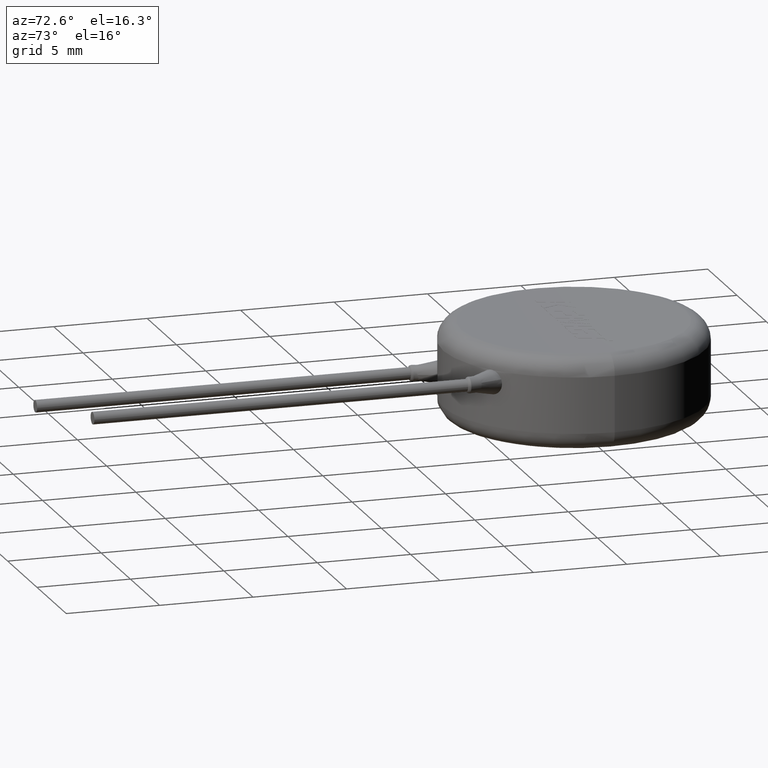
[diagram: clean part render]
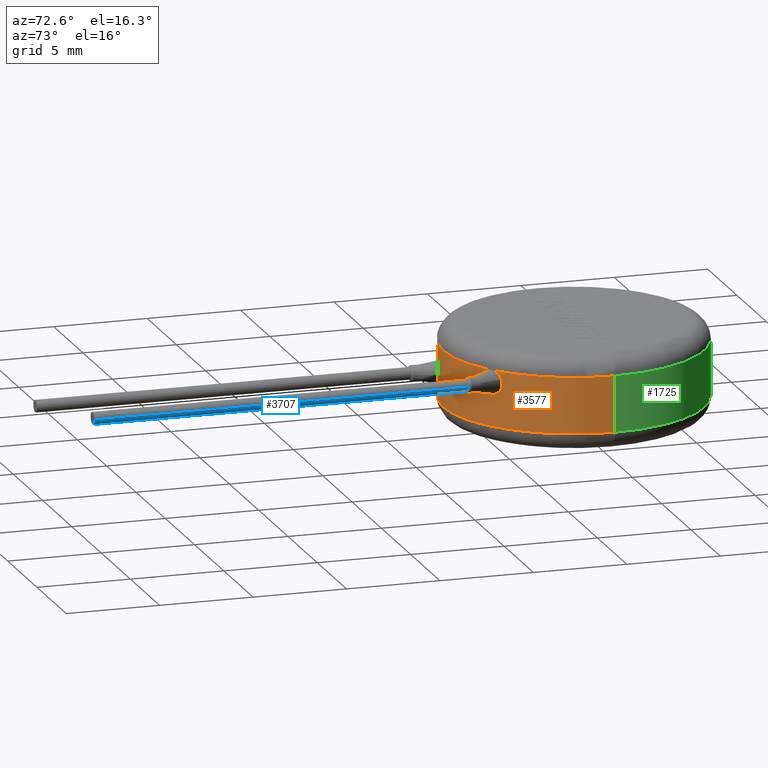
[diagram: same view with three faces highlighted in distinct colors, each labeled with its STEP entity id]
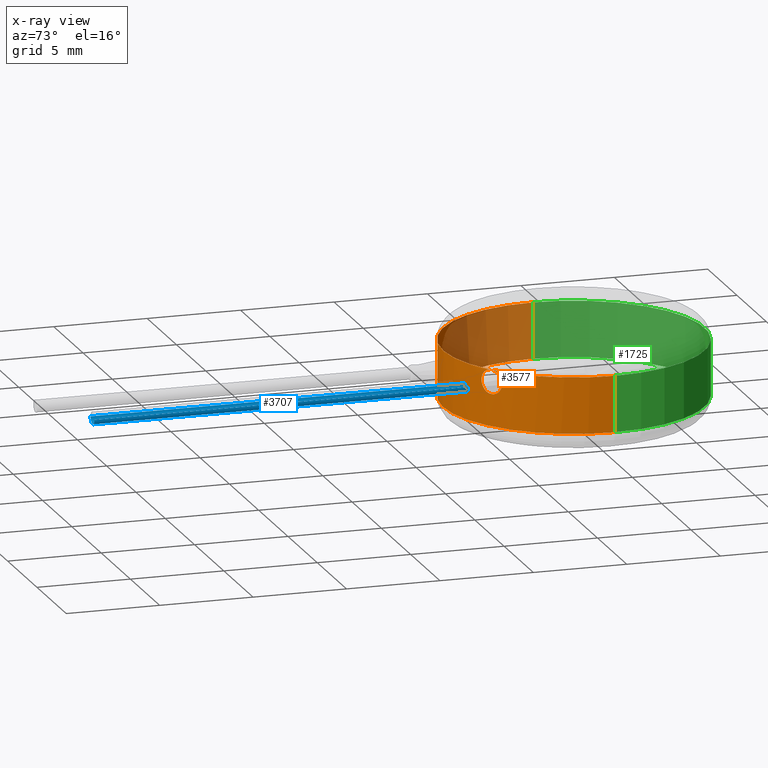
[diagram: x-ray of the same camera — body ghosted, the three highlighted faces saturated]
A machine part, auxiliary view with three faces highlighted in distinct colors.
The next image is the same camera in x-ray (body ghosted, the three faces saturated) — at least one of them is partly hidden behind the body in this view.
Their STEP definitions:

[orange] entity #3577 — the highlighted cylindrical surface (partial cylindrical patch) has radius 7 mm, axis along (-0, -0, -1).
#12 = ORIENTED_EDGE ( 'NONE', *, *, #2064, .T. ) ;
#20 = VECTOR ( 'NONE', #1004, 1000.000000000000000 ) ;
#27 = ORIENTED_EDGE ( 'NONE', *, *, #2207, .T. ) ;
#29 = CARTESIAN_POINT ( 'NONE',  ( -7.000000000000000000, 0.0000000000000000000, 5.000000000000000000 ) ) ;
#43 = CARTESIAN_POINT ( 'NONE',  ( -3.977610638396999600, -5.760087986247347300, 1.000000000000000000 ) ) ;
#48 = B_SPLINE_CURVE_WITH_KNOTS ( 'NONE', 3,
 ( #987, #651, #1262, #2299, #3583, #43 ),
 .UNSPECIFIED., .F., .F.,
 ( 4, 2, 4 ),
 ( 0.002963719865787387600, 0.003404983552863282400, 0.003846247239939177200 ),
 .UNSPECIFIED. ) ;
#77 = EDGE_CURVE ( 'NONE', #722, #3879, #3872, .T. ) ;
#148 = CARTESIAN_POINT ( 'NONE',  ( 3.828367286404154200, -5.860833534000196500, 3.945505201940359800 ) ) ;
#153 = CARTESIAN_POINT ( 'NONE',  ( -4.395926143040046700, -5.448448431590438900, 1.106615888908080400 ) ) ;
#175 = CARTESIAN_POINT ( 'NONE',  ( 3.535580555238675000, -6.041575525594659300, 3.233672010965067400 ) ) ;
#182 = DIRECTION ( 'NONE',  ( 0.0000000000000000000, 0.0000000000000000000, 1.000000000000000000 ) ) ;
#183 = CARTESIAN_POINT ( 'NONE',  ( -3.530729797589586400, -6.044331815545288800, 1.626217363230152200 ) ) ;
#217 = CARTESIAN_POINT ( 'NONE',  ( 4.557008083773412800, -5.313537176347199200, 3.595303316172778500 ) ) ;
#276 = CYLINDRICAL_SURFACE ( 'NONE', #1377, 7.000000000000000000 ) ;
#312 = B_SPLINE_CURVE_WITH_KNOTS ( 'NONE', 3,
 ( #2465, #1100, #148, #3098, #3082, #3775, #1813, #3057, #175, #1796 ),
 .UNSPECIFIED., .F., .F.,
 ( 4, 2, 2, 2, 4 ),
 ( 1.085620294392345800E-006, 0.0002797900207472633700, 0.0005584944212001350800, 0.0008371988216530067400, 0.001115903222105878500 ),
 .UNSPECIFIED. ) ;
#390 = VECTOR ( 'NONE', #3253, 1000.000000000000000 ) ;
#410 = DIRECTION ( 'NONE',  ( -0.0000000000000000000, -0.0000000000000000000, -1.000000000000000000 ) ) ;
#421 = ORIENTED_EDGE ( 'NONE', *, *, #1271, .T. ) ;
#448 = DIRECTION ( 'NONE',  ( 1.000000000000000000, 0.0000000000000000000, 0.0000000000000000000 ) ) ;
#465 = CARTESIAN_POINT ( 'NONE',  ( -3.936970613067717100, -5.790521757928056300, 2.290329430739383100 ) ) ;
#486 = CARTESIAN_POINT ( 'NONE',  ( 4.557008083773412800, -5.313537176347199200, 3.595303316172778500 ) ) ;
#535 = CARTESIAN_POINT ( 'NONE',  ( 4.497122014507260300, -5.364785372250214100, 2.932054119290087500 ) ) ;
#538 = CIRCLE ( 'NONE', #3452, 7.000000000000000000 ) ;
#549 = EDGE_CURVE ( 'NONE', #2054, #1360, #2584, .T. ) ;
#577 = DIRECTION ( 'NONE',  ( -1.000000000000000000, 0.0000000000000000000, 0.0000000000000000000 ) ) ;
#651 = CARTESIAN_POINT ( 'NONE',  ( -3.533272416161075100, -6.042846572936472400, 1.479120242707307100 ) ) ;
#653 = CARTESIAN_POINT ( 'NONE',  ( -4.354083674969453800, -5.482417994490859300, 2.223775622895006500 ) ) ;
#722 = VERTEX_POINT ( 'NONE', #3522 ) ;
#728 = CARTESIAN_POINT ( 'NONE',  ( -3.530729797589586400, -6.044331815545288800, 1.626217363230152200 ) ) ;
#762 = CARTESIAN_POINT ( 'NONE',  ( 0.0000000000000000000, 0.0000000000000000000, 5.000000000000000000 ) ) ;
#770 = EDGE_LOOP ( 'NONE', ( #1550, #12, #3611, #3713, #2060, #871, #3565, #2434, #27, #1504, #421, #2978 ) ) ;
#835 = CARTESIAN_POINT ( 'NONE',  ( 0.0000000000000000000, 0.0000000000000000000, 4.000000000000000000 ) ) ;
#871 = ORIENTED_EDGE ( 'NONE', *, *, #3467, .T. ) ;
#958 = CARTESIAN_POINT ( 'NONE',  ( -4.593118567060977300, -5.282353815196376700, 1.635629276652488900 ) ) ;
#980 = FACE_OUTER_BOUND ( 'NONE', #770, .T. ) ;
#987 = CARTESIAN_POINT ( 'NONE',  ( -3.530729797589586400, -6.044331815545288800, 1.626217363230152200 ) ) ;
#1004 = DIRECTION ( 'NONE',  ( -0.0000000000000000000, -0.0000000000000000000, -1.000000000000000000 ) ) ;
#1052 = DIRECTION ( 'NONE',  ( 1.000000000000000000, 0.0000000000000000000, 0.0000000000000000000 ) ) ;
#1100 = CARTESIAN_POINT ( 'NONE',  ( 3.901385637171960400, -5.812724921049119900, 3.982808568606164700 ) ) ;
#1145 = CARTESIAN_POINT ( 'NONE',  ( -3.587348342874108200, -6.012126428775881800, 1.971359770299618600 ) ) ;
#1148 = CARTESIAN_POINT ( 'NONE',  ( 4.132706812022294500, -5.652199234662739400, 2.688516500495922800 ) ) ;
#1175 = EDGE_CURVE ( 'NONE', #3126, #2054, #4124, .T. ) ;
#1262 = CARTESIAN_POINT ( 'NONE',  ( -3.581488304916131200, -6.015142150009068300, 1.331680136269377300 ) ) ;
#1271 = EDGE_CURVE ( 'NONE', #2486, #3860, #48, .T. ) ;
#1312 = CARTESIAN_POINT ( 'NONE',  ( -4.217979829344741900, -5.589143583451577700, 2.293284894811562900 ) ) ;
#1360 = VERTEX_POINT ( 'NONE', #2385 ) ;
#1377 = AXIS2_PLACEMENT_3D ( 'NONE', #762, #1384, #577 ) ;
#1384 = DIRECTION ( 'NONE',  ( -0.0000000000000000000, -0.0000000000000000000, -1.000000000000000000 ) ) ;
#1387 = CARTESIAN_POINT ( 'NONE',  ( 0.0000000000000000000, 0.0000000000000000000, 4.000000000000000000 ) ) ;
#1504 = ORIENTED_EDGE ( 'NONE', *, *, #2965, .T. ) ;
#1506 = CARTESIAN_POINT ( 'NONE',  ( 4.258389669405115500, -5.556821617263621800, 3.979643400135394000 ) ) ;
#1532 = EDGE_CURVE ( 'NONE', #4056, #722, #312, .T. ) ;
#1550 = ORIENTED_EDGE ( 'NONE', *, *, #2416, .F. ) ;
#1675 = CIRCLE ( 'NONE', #1716, 7.000000000000000000 ) ;
#1716 = AXIS2_PLACEMENT_3D ( 'NONE', #4190, #2847, #2818 ) ;
#1793 = CARTESIAN_POINT ( 'NONE',  ( 7.000000000000000000, 8.572527594031473200E-016, 4.000000000000000000 ) ) ;
#1796 = CARTESIAN_POINT ( 'NONE',  ( 3.562317344712260700, -6.025769256747406800, 3.145362050685127600 ) ) ;
#1808 = CARTESIAN_POINT ( 'NONE',  ( 3.720113014935606500, -5.931703609954853500, 2.843880172755766500 ) ) ;
#1813 = CARTESIAN_POINT ( 'NONE',  ( 3.540608667306630200, -6.038556660774052200, 3.514633686149718700 ) ) ;
#1932 = AXIS2_PLACEMENT_3D ( 'NONE', #2801, #182, #2832 ) ;
#1966 = CARTESIAN_POINT ( 'NONE',  ( -7.000000000000000000, 0.0000000000000000000, 4.000000000000000000 ) ) ;
#2054 = VERTEX_POINT ( 'NONE', #3045 ) ;
#2060 = ORIENTED_EDGE ( 'NONE', *, *, #1532, .F. ) ;
#2064 = EDGE_CURVE ( 'NONE', #4165, #3766, #538, .T. ) ;
#2081 = CARTESIAN_POINT ( 'NONE',  ( 4.169857457478782300, -5.622480661088002500, 4.000000000000000000 ) ) ;
#2122 = CARTESIAN_POINT ( 'NONE',  ( 3.980739110923676300, -5.760040337619805100, 2.697601377817156400 ) ) ;
#2167 = CARTESIAN_POINT ( 'NONE',  ( 4.339454304675089500, -5.493321218865511400, 3.931370533495437000 ) ) ;
#2207 = EDGE_CURVE ( 'NONE', #1360, #2214, #2607, .T. ) ;
#2214 = VERTEX_POINT ( 'NONE', #3491 ) ;
#2299 = CARTESIAN_POINT ( 'NONE',  ( -3.743127468215576400, -5.915909931680567400, 1.106756576125566000 ) ) ;
#2385 = CARTESIAN_POINT ( 'NONE',  ( -4.169857457479105600, -5.622480661087763600, 1.000000000000000000 ) ) ;
#2386 = CARTESIAN_POINT ( 'NONE',  ( 4.557008083773412800, -5.313537176347199200, 3.595303316172778500 ) ) ;
#2416 = EDGE_CURVE ( 'NONE', #4165, #2857, #2538, .T. ) ;
#2434 = ORIENTED_EDGE ( 'NONE', *, *, #549, .T. ) ;
#2465 = CARTESIAN_POINT ( 'NONE',  ( 3.977610638397353500, -5.760087986247102200, 4.000000000000000000 ) ) ;
#2471 = CARTESIAN_POINT ( 'NONE',  ( -4.169857457479105600, -5.622480661087763600, 1.000000000000000000 ) ) ;
#2486 = VERTEX_POINT ( 'NONE', #728 ) ;
#2503 = CARTESIAN_POINT ( 'NONE',  ( 3.611912877210702100, -5.996449344531781900, 2.981551077444383000 ) ) ;
#2538 = LINE ( 'NONE', #3303, #390 ) ;
#2584 = CIRCLE ( 'NONE', #1932, 7.000000000000000000 ) ;
#2598 = CARTESIAN_POINT ( 'NONE',  ( -3.977610638396999600, -5.760087986247347300, 1.000000000000000000 ) ) ;
#2607 = B_SPLINE_CURVE_WITH_KNOTS ( 'NONE', 3,
 ( #2471, #2792, #153, #3192, #4203, #3512 ),
 .UNSPECIFIED., .F., .F.,
 ( 4, 2, 4 ),
 ( 1.090572640044728000E-006, 0.0004510740408161545300, 0.0009010575089922642700 ),
 .UNSPECIFIED. ) ;
#2643 = CARTESIAN_POINT ( 'NONE',  ( -4.495699306850101900, -5.365857403167360900, 2.042240970141401500 ) ) ;
#2742 = B_SPLINE_CURVE_WITH_KNOTS ( 'NONE', 3,
 ( #958, #3586, #3603, #4259, #2643, #653, #1312, #465, #4105, #1145, #3433, #183 ),
 .UNSPECIFIED., .F., .F.,
 ( 4, 2, 2, 2, 2, 4 ),
 ( 0.0009010575089922642700, 0.001158890303591655200, 0.001416723098191045500, 0.001932388687389826200, 0.002448054276588606900, 0.002963719865787387600 ),
 .UNSPECIFIED. ) ;
#2792 = CARTESIAN_POINT ( 'NONE',  ( -4.290021788428105300, -5.533361967448054300, 1.027629911756540400 ) ) ;
#2801 = CARTESIAN_POINT ( 'NONE',  ( 0.0000000000000000000, 0.0000000000000000000, 1.000000000000000000 ) ) ;
#2818 = DIRECTION ( 'NONE',  ( 1.000000000000000000, 0.0000000000000000000, 0.0000000000000000000 ) ) ;
#2822 = CARTESIAN_POINT ( 'NONE',  ( 4.604881473967767900, -5.272579550313502700, 3.248216118914990500 ) ) ;
#2832 = DIRECTION ( 'NONE',  ( 1.000000000000000000, 0.0000000000000000000, 0.0000000000000000000 ) ) ;
#2847 = DIRECTION ( 'NONE',  ( 0.0000000000000000000, 0.0000000000000000000, 1.000000000000000000 ) ) ;
#2857 = VERTEX_POINT ( 'NONE', #3764 ) ;
#2965 = EDGE_CURVE ( 'NONE', #2214, #2486, #2742, .T. ) ;
#2978 = ORIENTED_EDGE ( 'NONE', *, *, #3947, .T. ) ;
#3006 = DIRECTION ( 'NONE',  ( -0.0000000000000000000, -0.0000000000000000000, -1.000000000000000000 ) ) ;
#3045 = CARTESIAN_POINT ( 'NONE',  ( -7.000000000000000000, 0.0000000000000000000, 1.000000000000000000 ) ) ;
#3057 = CARTESIAN_POINT ( 'NONE',  ( 3.525529114462114100, -6.047373044840668400, 3.328307842371081900 ) ) ;
#3082 = CARTESIAN_POINT ( 'NONE',  ( 3.645355949732819800, -5.976080202251932100, 3.766669213515885700 ) ) ;
#3098 = CARTESIAN_POINT ( 'NONE',  ( 3.700330074036612500, -5.942501420786615400, 3.837654212041185200 ) ) ;
#3126 = VERTEX_POINT ( 'NONE', #1966 ) ;
#3143 = CARTESIAN_POINT ( 'NONE',  ( 4.525451239684284300, -5.340601030205869300, 3.697842940092998600 ) ) ;
#3151 = CARTESIAN_POINT ( 'NONE',  ( 4.606207931032228600, -5.271342289168057200, 3.435435180420666000 ) ) ;
#3192 = CARTESIAN_POINT ( 'NONE',  ( -4.547911901547733400, -5.322241473526327500, 1.337252504833349900 ) ) ;
#3253 = DIRECTION ( 'NONE',  ( -0.0000000000000000000, -0.0000000000000000000, -1.000000000000000000 ) ) ;
#3303 = CARTESIAN_POINT ( 'NONE',  ( 7.000000000000000000, 8.572527594031473200E-016, 5.000000000000000000 ) ) ;
#3433 = CARTESIAN_POINT ( 'NONE',  ( -3.527758465612411200, -6.046067486363916100, 1.798116673201722600 ) ) ;
#3452 = AXIS2_PLACEMENT_3D ( 'NONE', #1387, #3006, #1052 ) ;
#3467 = EDGE_CURVE ( 'NONE', #4056, #3126, #4102, .T. ) ;
#3480 = CARTESIAN_POINT ( 'NONE',  ( 3.562317344712260700, -6.025769256747406800, 3.145362050685127600 ) ) ;
#3491 = CARTESIAN_POINT ( 'NONE',  ( -4.593118567060977300, -5.282353815196376700, 1.635629276652488900 ) ) ;
#3492 = CARTESIAN_POINT ( 'NONE',  ( 4.391567892161810400, -5.453508341516589500, 2.806020906084030200 ) ) ;
#3512 = CARTESIAN_POINT ( 'NONE',  ( -4.593118567060977300, -5.282353815196376700, 1.635629276652488900 ) ) ;
#3522 = CARTESIAN_POINT ( 'NONE',  ( 3.562317344712260700, -6.025769256747406800, 3.145362050685127600 ) ) ;
#3565 = ORIENTED_EDGE ( 'NONE', *, *, #1175, .T. ) ;
#3577 = ADVANCED_FACE ( 'NONE', ( #980 ), #276, .T. ) ;
#3583 = CARTESIAN_POINT ( 'NONE',  ( -3.856874545326664200, -5.843461915496634500, 1.027230255525327900 ) ) ;
#3586 = CARTESIAN_POINT ( 'NONE',  ( -4.594478694556075400, -5.281171155520431700, 1.722593049784109500 ) ) ;
#3603 = CARTESIAN_POINT ( 'NONE',  ( -4.582487860501708500, -5.291678325403031700, 1.808782814098524500 ) ) ;
#3611 = ORIENTED_EDGE ( 'NONE', *, *, #3639, .F. ) ;
#3639 = EDGE_CURVE ( 'NONE', #3879, #3766, #3729, .T. ) ;
#3713 = ORIENTED_EDGE ( 'NONE', *, *, #77, .F. ) ;
#3729 = B_SPLINE_CURVE_WITH_KNOTS ( 'NONE', 3,
 ( #217, #3143, #4158, #2167, #1506, #4177 ),
 .UNSPECIFIED., .F., .F.,
 ( 4, 2, 4 ),
 ( 0.003183839338935114700, 0.003515433547362993600, 0.003847027755790871600 ),
 .UNSPECIFIED. ) ;
#3756 = CARTESIAN_POINT ( 'NONE',  ( 3.977610638397353500, -5.760087986247102200, 4.000000000000000000 ) ) ;
#3764 = CARTESIAN_POINT ( 'NONE',  ( 7.000000000000000000, 8.572527594031473200E-016, 1.000000000000000000 ) ) ;
#3766 = VERTEX_POINT ( 'NONE', #2081 ) ;
#3775 = CARTESIAN_POINT ( 'NONE',  ( 3.565783244263808000, -6.023897777928129700, 3.605618999402731500 ) ) ;
#3860 = VERTEX_POINT ( 'NONE', #2598 ) ;
#3872 = B_SPLINE_CURVE_WITH_KNOTS ( 'NONE', 3,
 ( #3480, #2503, #1808, #2122, #1148, #3492, #535, #2822, #3151, #486 ),
 .UNSPECIFIED., .F., .F.,
 ( 4, 2, 2, 2, 4 ),
 ( 0.001115903222105878500, 0.001632887251313188100, 0.002149871280520496800, 0.002666855309727806000, 0.003183839338935114700 ),
 .UNSPECIFIED. ) ;
#3879 = VERTEX_POINT ( 'NONE', #2386 ) ;
#3947 = EDGE_CURVE ( 'NONE', #3860, #2857, #1675, .T. ) ;
#4030 = AXIS2_PLACEMENT_3D ( 'NONE', #835, #410, #448 ) ;
#4056 = VERTEX_POINT ( 'NONE', #3756 ) ;
#4102 = CIRCLE ( 'NONE', #4030, 7.000000000000000000 ) ;
#4105 = CARTESIAN_POINT ( 'NONE',  ( -3.793624237095371200, -5.884143733495093000, 2.218407288868975000 ) ) ;
#4124 = LINE ( 'NONE', #29, #20 ) ;
#4158 = CARTESIAN_POINT ( 'NONE',  ( 4.473510778724193700, -5.384713826067241800, 3.790234116181489200 ) ) ;
#4165 = VERTEX_POINT ( 'NONE', #1793 ) ;
#4177 = CARTESIAN_POINT ( 'NONE',  ( 4.169857457478782300, -5.622480661088002500, 4.000000000000000000 ) ) ;
#4190 = CARTESIAN_POINT ( 'NONE',  ( 0.0000000000000000000, 0.0000000000000000000, 1.000000000000000000 ) ) ;
#4203 = CARTESIAN_POINT ( 'NONE',  ( -4.590744800417534900, -5.284417855589220300, 1.483855487363004300 ) ) ;
#4259 = CARTESIAN_POINT ( 'NONE',  ( -4.533195603182389500, -5.333965889886587600, 1.968768757482398900 ) ) ;

[blue] entity #3707 — the highlighted cylindrical surface (edge-blend (fillet) strip) has radius 0.325 mm, axis along (0, -1, 0).
#35 = ORIENTED_EDGE ( 'NONE', *, *, #1841, .F. ) ;
#116 = DIRECTION ( 'NONE',  ( 5.074066167232159500E-017, -1.000000000000000000, 1.387778780781445400E-017 ) ) ;
#152 = EDGE_LOOP ( 'NONE', ( #35, #3070, #829, #4172, #1079 ) ) ;
#225 = DIRECTION ( 'NONE',  ( 1.301042606982605600E-016, -1.000000000000000000, 0.0000000000000000000 ) ) ;
#727 = VERTEX_POINT ( 'NONE', #3855 ) ;
#804 = CARTESIAN_POINT ( 'NONE',  ( 4.889012070387051900, -7.292392426571105100, 3.547645443654348500 ) ) ;
#829 = ORIENTED_EDGE ( 'NONE', *, *, #909, .T. ) ;
#830 = VECTOR ( 'NONE', #225, 1000.000000000000000 ) ;
#909 = EDGE_CURVE ( 'NONE', #1953, #3287, #2632, .T. ) ;
#953 = DIRECTION ( 'NONE',  ( 1.301042606982605600E-016, -1.000000000000000000, 0.0000000000000000000 ) ) ;
#1013 = LINE ( 'NONE', #2636, #4029 ) ;
#1020 = CARTESIAN_POINT ( 'NONE',  ( 5.214012070387052100, -7.292392426571105100, 3.547645443654348500 ) ) ;
#1025 = CARTESIAN_POINT ( 'NONE',  ( 4.889012070387051900, -7.292392426571105100, 3.547645443654348500 ) ) ;
#1049 = LINE ( 'NONE', #3524, #830 ) ;
#1079 = ORIENTED_EDGE ( 'NONE', *, *, #3548, .F. ) ;
#1120 = VERTEX_POINT ( 'NONE', #3645 ) ;
#1257 = VERTEX_POINT ( 'NONE', #1960 ) ;
#1502 = DIRECTION ( 'NONE',  ( 1.000000000000000000, 0.0000000000000000000, 0.0000000000000000000 ) ) ;
#1541 = AXIS2_PLACEMENT_3D ( 'NONE', #1025, #2697, #1696 ) ;
#1665 = DIRECTION ( 'NONE',  ( 1.301042606982605600E-016, -1.000000000000000000, 0.0000000000000000000 ) ) ;
#1696 = DIRECTION ( 'NONE',  ( 2.668805347656628100E-015, 0.0000000000000000000, 1.000000000000000000 ) ) ;
#1786 = CIRCLE ( 'NONE', #2790, 0.3249999999999999600 ) ;
#1841 = EDGE_CURVE ( 'NONE', #1257, #727, #1013, .T. ) ;
#1953 = VERTEX_POINT ( 'NONE', #2649 ) ;
#1960 = CARTESIAN_POINT ( 'NONE',  ( 4.564012070387052600, -7.292392426571105100, 3.547645443654348500 ) ) ;
#2056 = DIRECTION ( 'NONE',  ( 0.9994723878432226800, 0.0000000000000000000, 0.03247993132638519300 ) ) ;
#2308 = FACE_OUTER_BOUND ( 'NONE', #152, .T. ) ;
#2553 = AXIS2_PLACEMENT_3D ( 'NONE', #2675, #1665, #1502 ) ;
#2632 = CIRCLE ( 'NONE', #1541, 0.3249999999999997900 ) ;
#2636 = CARTESIAN_POINT ( 'NONE',  ( 4.564012070387051700, -7.292392426571106000, 3.547645443654348500 ) ) ;
#2649 = CARTESIAN_POINT ( 'NONE',  ( 4.985547309132013700, -7.292392426571105100, 3.237313447752454100 ) ) ;
#2675 = CARTESIAN_POINT ( 'NONE',  ( 4.889012070387051000, -7.292392426571106000, 3.547645443654348500 ) ) ;
#2691 = AXIS2_PLACEMENT_3D ( 'NONE', #804, #3419, #3479 ) ;
#2697 = DIRECTION ( 'NONE',  ( -0.0000000000000000000, -1.000000000000000000, -0.0000000000000000000 ) ) ;
#2711 = EDGE_CURVE ( 'NONE', #3287, #1120, #1049, .T. ) ;
#2790 = AXIS2_PLACEMENT_3D ( 'NONE', #3356, #116, #2056 ) ;
#3065 = CYLINDRICAL_SURFACE ( 'NONE', #2553, 0.3249999999999997900 ) ;
#3070 = ORIENTED_EDGE ( 'NONE', *, *, #4014, .T. ) ;
#3287 = VERTEX_POINT ( 'NONE', #1020 ) ;
#3356 = CARTESIAN_POINT ( 'NONE',  ( 4.889012070387053700, -27.29239242657110500, 3.547645443654348500 ) ) ;
#3419 = DIRECTION ( 'NONE',  ( -0.0000000000000000000, -1.000000000000000000, -0.0000000000000000000 ) ) ;
#3479 = DIRECTION ( 'NONE',  ( 0.0000000000000000000, 0.0000000000000000000, 1.000000000000000000 ) ) ;
#3524 = CARTESIAN_POINT ( 'NONE',  ( 5.214012070387051200, -7.292392426571106000, 3.547645443654348500 ) ) ;
#3548 = EDGE_CURVE ( 'NONE', #727, #1120, #1786, .T. ) ;
#3645 = CARTESIAN_POINT ( 'NONE',  ( 5.214012070387053800, -27.29239242657110500, 3.547645443654348500 ) ) ;
#3707 = ADVANCED_FACE ( 'NONE', ( #2308 ), #3065, .T. ) ;
#3855 = CARTESIAN_POINT ( 'NONE',  ( 4.564012070387054400, -27.29239242657110500, 3.547645443654348500 ) ) ;
#4014 = EDGE_CURVE ( 'NONE', #1257, #1953, #4150, .T. ) ;
#4029 = VECTOR ( 'NONE', #953, 1000.000000000000000 ) ;
#4150 = CIRCLE ( 'NONE', #2691, 0.3249999999999997900 ) ;
#4172 = ORIENTED_EDGE ( 'NONE', *, *, #2711, .T. ) ;

[green] entity #1725 — the highlighted cylindrical surface (partial cylindrical patch) has radius 7 mm, axis along (-0, -0, -1).
#20 = VECTOR ( 'NONE', #1004, 1000.000000000000000 ) ;
#29 = CARTESIAN_POINT ( 'NONE',  ( -7.000000000000000000, 0.0000000000000000000, 5.000000000000000000 ) ) ;
#303 = CYLINDRICAL_SURFACE ( 'NONE', #3313, 7.000000000000000000 ) ;
#382 = DIRECTION ( 'NONE',  ( -0.0000000000000000000, -0.0000000000000000000, -1.000000000000000000 ) ) ;
#390 = VECTOR ( 'NONE', #3253, 1000.000000000000000 ) ;
#647 = CIRCLE ( 'NONE', #1763, 7.000000000000000000 ) ;
#658 = DIRECTION ( 'NONE',  ( 0.0000000000000000000, 0.0000000000000000000, 1.000000000000000000 ) ) ;
#992 = DIRECTION ( 'NONE',  ( -1.000000000000000000, 0.0000000000000000000, 0.0000000000000000000 ) ) ;
#1004 = DIRECTION ( 'NONE',  ( -0.0000000000000000000, -0.0000000000000000000, -1.000000000000000000 ) ) ;
#1012 = DIRECTION ( 'NONE',  ( 1.000000000000000000, 0.0000000000000000000, 0.0000000000000000000 ) ) ;
#1021 = CARTESIAN_POINT ( 'NONE',  ( 0.0000000000000000000, 0.0000000000000000000, 5.000000000000000000 ) ) ;
#1175 = EDGE_CURVE ( 'NONE', #3126, #2054, #4124, .T. ) ;
#1297 = CIRCLE ( 'NONE', #3536, 7.000000000000000000 ) ;
#1725 = ADVANCED_FACE ( 'NONE', ( #2448 ), #303, .T. ) ;
#1763 = AXIS2_PLACEMENT_3D ( 'NONE', #2174, #1820, #3505 ) ;
#1793 = CARTESIAN_POINT ( 'NONE',  ( 7.000000000000000000, 8.572527594031473200E-016, 4.000000000000000000 ) ) ;
#1820 = DIRECTION ( 'NONE',  ( -0.0000000000000000000, -0.0000000000000000000, -1.000000000000000000 ) ) ;
#1904 = EDGE_CURVE ( 'NONE', #3126, #4165, #647, .T. ) ;
#1952 = EDGE_CURVE ( 'NONE', #2857, #2054, #1297, .T. ) ;
#1966 = CARTESIAN_POINT ( 'NONE',  ( -7.000000000000000000, 0.0000000000000000000, 4.000000000000000000 ) ) ;
#2034 = ORIENTED_EDGE ( 'NONE', *, *, #2416, .T. ) ;
#2054 = VERTEX_POINT ( 'NONE', #3045 ) ;
#2174 = CARTESIAN_POINT ( 'NONE',  ( 0.0000000000000000000, 0.0000000000000000000, 4.000000000000000000 ) ) ;
#2416 = EDGE_CURVE ( 'NONE', #4165, #2857, #2538, .T. ) ;
#2448 = FACE_OUTER_BOUND ( 'NONE', #3394, .T. ) ;
#2538 = LINE ( 'NONE', #3303, #390 ) ;
#2655 = ORIENTED_EDGE ( 'NONE', *, *, #1952, .T. ) ;
#2773 = ORIENTED_EDGE ( 'NONE', *, *, #1904, .T. ) ;
#2857 = VERTEX_POINT ( 'NONE', #3764 ) ;
#2936 = CARTESIAN_POINT ( 'NONE',  ( 0.0000000000000000000, 0.0000000000000000000, 1.000000000000000000 ) ) ;
#3045 = CARTESIAN_POINT ( 'NONE',  ( -7.000000000000000000, 0.0000000000000000000, 1.000000000000000000 ) ) ;
#3126 = VERTEX_POINT ( 'NONE', #1966 ) ;
#3217 = ORIENTED_EDGE ( 'NONE', *, *, #1175, .F. ) ;
#3253 = DIRECTION ( 'NONE',  ( -0.0000000000000000000, -0.0000000000000000000, -1.000000000000000000 ) ) ;
#3303 = CARTESIAN_POINT ( 'NONE',  ( 7.000000000000000000, 8.572527594031473200E-016, 5.000000000000000000 ) ) ;
#3313 = AXIS2_PLACEMENT_3D ( 'NONE', #1021, #382, #992 ) ;
#3394 = EDGE_LOOP ( 'NONE', ( #2773, #2034, #2655, #3217 ) ) ;
#3505 = DIRECTION ( 'NONE',  ( 1.000000000000000000, 0.0000000000000000000, 0.0000000000000000000 ) ) ;
#3536 = AXIS2_PLACEMENT_3D ( 'NONE', #2936, #658, #1012 ) ;
#3764 = CARTESIAN_POINT ( 'NONE',  ( 7.000000000000000000, 8.572527594031473200E-016, 1.000000000000000000 ) ) ;
#4124 = LINE ( 'NONE', #29, #20 ) ;
#4165 = VERTEX_POINT ( 'NONE', #1793 ) ;